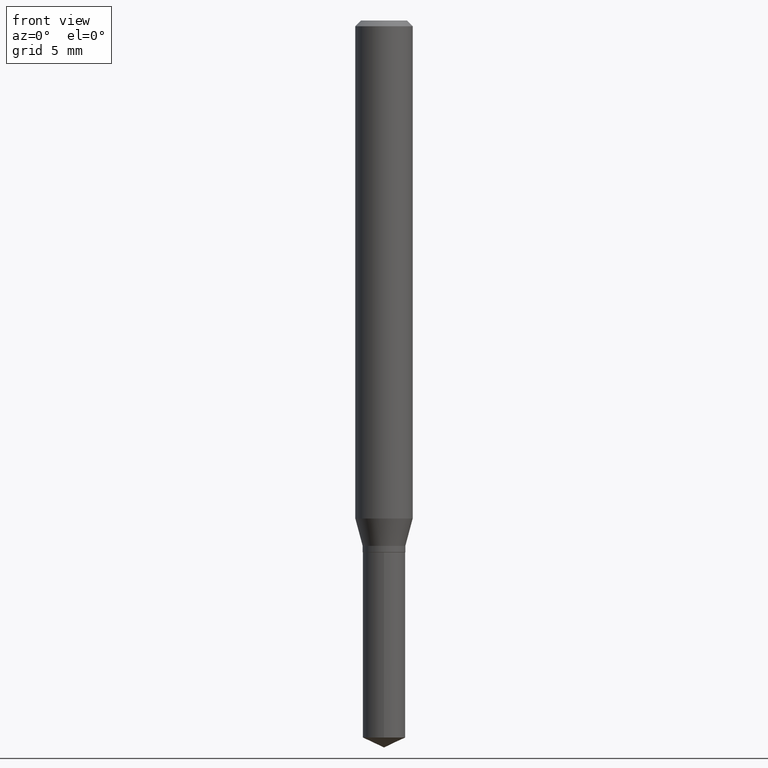
[diagram: clean part render]
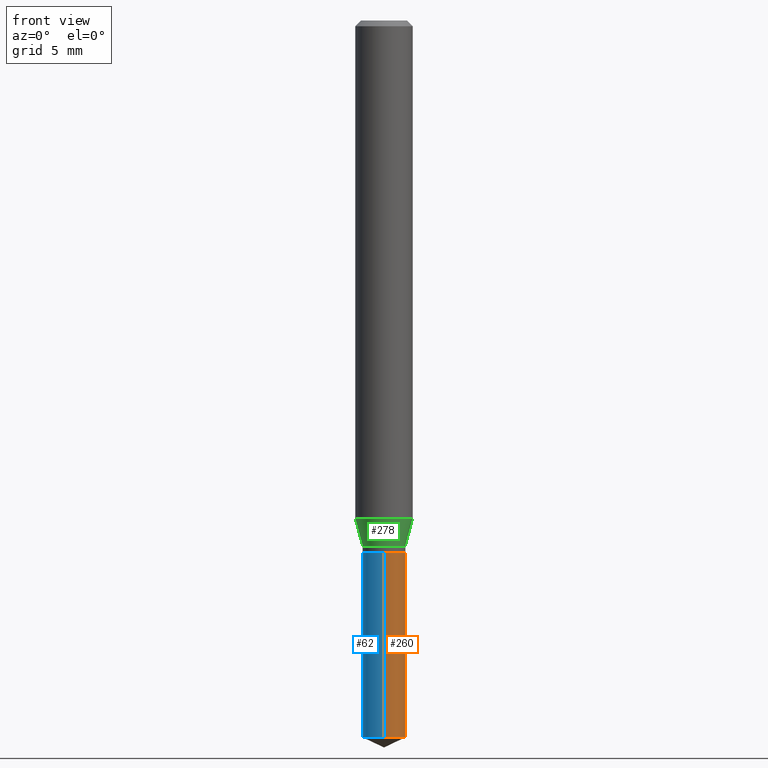
[diagram: same view with three faces highlighted in distinct colors, each labeled with its STEP entity id]
A machine part, front view with three faces highlighted in distinct colors.
Their STEP definitions:

[orange] entity #260 — the highlighted cylindrical surface (edge-blend (fillet) strip) has radius 1.1151 mm, axis along (-0, 0, 1).
#4 = VERTEX_POINT ( 'NONE', #436 ) ;
#9 = DIRECTION ( 'NONE',  ( -6.982962677686265922E-15, -1.000000000000000000, 3.111444184127862170E-15 ) ) ;
#20 = DIRECTION ( 'NONE',  ( -2.445458899330790108E-29, 3.491495526022433205E-15, 1.000000000000000000 ) ) ;
#40 = CARTESIAN_POINT ( 'NONE',  ( 3.119282609987106658E-16, 0.04389999999999617819, -1.094500000000000028 ) ) ;
#77 = VECTOR ( 'NONE', #310, 39.37007874015748143 ) ;
#88 = CARTESIAN_POINT ( 'NONE',  ( 2.676565608369631794E-29, -3.821426325363822773E-15, -1.094499999999999806 ) ) ;
#101 = ORIENTED_EDGE ( 'NONE', *, *, #441, .T. ) ;
#137 = CARTESIAN_POINT ( 'NONE',  ( -3.065520615504003481E-16, -0.04390000000000382485, -1.094499999999999806 ) ) ;
#157 = LINE ( 'NONE', #40, #77 ) ;
#177 = AXIS2_PLACEMENT_3D ( 'NONE', #88, #425, #9 ) ;
#179 = EDGE_CURVE ( 'NONE', #4, #355, #465, .T. ) ;
#205 = CIRCLE ( 'NONE', #233, 0.04390000000000000152 ) ;
#233 = AXIS2_PLACEMENT_3D ( 'NONE', #466, #237, #272 ) ;
#237 = DIRECTION ( 'NONE',  ( -2.445458899330790108E-29, 3.491495526022433205E-15, 1.000000000000000000 ) ) ;
#240 = ORIENTED_EDGE ( 'NONE', *, *, #455, .T. ) ;
#260 = ADVANCED_FACE ( 'NONE', ( #393 ), #273, .T. ) ;
#265 = CARTESIAN_POINT ( 'NONE',  ( -3.065520615503908817E-16, -0.04390000000000513630, -1.475629093806995584 ) ) ;
#272 = DIRECTION ( 'NONE',  ( -6.982962677686265922E-15, -1.000000000000000000, 6.222888368255724339E-15 ) ) ;
#273 = CYLINDRICAL_SURFACE ( 'NONE', #177, 0.04390000000000000152 ) ;
#285 = EDGE_CURVE ( 'NONE', #367, #4, #323, .T. ) ;
#307 = ORIENTED_EDGE ( 'NONE', *, *, #179, .F. ) ;
#310 = DIRECTION ( 'NONE',  ( -2.445458899330790108E-29, 3.491495526022433599E-15, 1.000000000000000000 ) ) ;
#323 = LINE ( 'NONE', #137, #379 ) ;
#351 = CARTESIAN_POINT ( 'NONE',  ( 3.119282609987198856E-16, 0.04389999999999482511, -1.475629093806996028 ) ) ;
#355 = VERTEX_POINT ( 'NONE', #420 ) ;
#367 = VERTEX_POINT ( 'NONE', #265 ) ;
#379 = VECTOR ( 'NONE', #438, 39.37007874015748143 ) ;
#393 = FACE_OUTER_BOUND ( 'NONE', #430, .T. ) ;
#420 = CARTESIAN_POINT ( 'NONE',  ( 3.119282609987200828E-16, 0.04389999999999617819, -1.094500000000000028 ) ) ;
#425 = DIRECTION ( 'NONE',  ( -2.445458899330790108E-29, 3.491495526022433205E-15, 1.000000000000000000 ) ) ;
#430 = EDGE_LOOP ( 'NONE', ( #101, #240, #307, #439 ) ) ;
#436 = CARTESIAN_POINT ( 'NONE',  ( -3.065520615504003481E-16, -0.04390000000000382485, -1.094499999999999806 ) ) ;
#438 = DIRECTION ( 'NONE',  ( -2.445458899330790108E-29, 3.491495526022433599E-15, 1.000000000000000000 ) ) ;
#439 = ORIENTED_EDGE ( 'NONE', *, *, #285, .F. ) ;
#441 = EDGE_CURVE ( 'NONE', #367, #458, #205, .T. ) ;
#442 = CARTESIAN_POINT ( 'NONE',  ( 2.676565608369631794E-29, -3.821426325363822773E-15, -1.094499999999999806 ) ) ;
#445 = AXIS2_PLACEMENT_3D ( 'NONE', #442, #20, #481 ) ;
#455 = EDGE_CURVE ( 'NONE', #458, #355, #157, .T. ) ;
#458 = VERTEX_POINT ( 'NONE', #351 ) ;
#465 = CIRCLE ( 'NONE', #445, 0.04390000000000000152 ) ;
#466 = CARTESIAN_POINT ( 'NONE',  ( 3.608601142613829336E-29, -5.152136851227932121E-15, -1.475629093806995806 ) ) ;
#481 = DIRECTION ( 'NONE',  ( -6.982962677686265922E-15, -1.000000000000000000, 3.111444184127862170E-15 ) ) ;

[blue] entity #62 — the highlighted cylindrical surface (edge-blend (fillet) strip) has radius 1.1151 mm, axis along (-0, 0, 1).
#4 = VERTEX_POINT ( 'NONE', #436 ) ;
#33 = ORIENTED_EDGE ( 'NONE', *, *, #455, .F. ) ;
#40 = CARTESIAN_POINT ( 'NONE',  ( 3.119282609987106658E-16, 0.04389999999999617819, -1.094500000000000028 ) ) ;
#62 = ADVANCED_FACE ( 'NONE', ( #124 ), #319, .T. ) ;
#77 = VECTOR ( 'NONE', #310, 39.37007874015748143 ) ;
#81 = DIRECTION ( 'NONE',  ( -6.982962677686265922E-15, -1.000000000000000000, 3.111444184127862170E-15 ) ) ;
#124 = FACE_OUTER_BOUND ( 'NONE', #201, .T. ) ;
#137 = CARTESIAN_POINT ( 'NONE',  ( -3.065520615504003481E-16, -0.04390000000000382485, -1.094499999999999806 ) ) ;
#144 = CIRCLE ( 'NONE', #204, 0.04390000000000000152 ) ;
#157 = LINE ( 'NONE', #40, #77 ) ;
#166 = DIRECTION ( 'NONE',  ( -6.982962677686265922E-15, -1.000000000000000000, 6.222888368255724339E-15 ) ) ;
#167 = CARTESIAN_POINT ( 'NONE',  ( 2.676565608369631794E-29, -3.821426325363822773E-15, -1.094499999999999806 ) ) ;
#201 = EDGE_LOOP ( 'NONE', ( #33, #424, #236, #370 ) ) ;
#204 = AXIS2_PLACEMENT_3D ( 'NONE', #247, #293, #166 ) ;
#219 = AXIS2_PLACEMENT_3D ( 'NONE', #238, #284, #81 ) ;
#236 = ORIENTED_EDGE ( 'NONE', *, *, #285, .T. ) ;
#238 = CARTESIAN_POINT ( 'NONE',  ( 2.676565608369631794E-29, -3.821426325363822773E-15, -1.094499999999999806 ) ) ;
#247 = CARTESIAN_POINT ( 'NONE',  ( 3.608601142613829336E-29, -5.152136851227932121E-15, -1.475629093806995806 ) ) ;
#257 = CIRCLE ( 'NONE', #219, 0.04390000000000000152 ) ;
#265 = CARTESIAN_POINT ( 'NONE',  ( -3.065520615503908817E-16, -0.04390000000000513630, -1.475629093806995584 ) ) ;
#266 = EDGE_CURVE ( 'NONE', #355, #4, #257, .T. ) ;
#284 = DIRECTION ( 'NONE',  ( -2.445458899330790108E-29, 3.491495526022433205E-15, 1.000000000000000000 ) ) ;
#285 = EDGE_CURVE ( 'NONE', #367, #4, #323, .T. ) ;
#287 = DIRECTION ( 'NONE',  ( -6.982962677686265922E-15, -1.000000000000000000, 3.111444184127862170E-15 ) ) ;
#293 = DIRECTION ( 'NONE',  ( -2.445458899330790108E-29, 3.491495526022433205E-15, 1.000000000000000000 ) ) ;
#299 = EDGE_CURVE ( 'NONE', #458, #367, #144, .T. ) ;
#310 = DIRECTION ( 'NONE',  ( -2.445458899330790108E-29, 3.491495526022433599E-15, 1.000000000000000000 ) ) ;
#319 = CYLINDRICAL_SURFACE ( 'NONE', #428, 0.04390000000000000152 ) ;
#323 = LINE ( 'NONE', #137, #379 ) ;
#351 = CARTESIAN_POINT ( 'NONE',  ( 3.119282609987198856E-16, 0.04389999999999482511, -1.475629093806996028 ) ) ;
#355 = VERTEX_POINT ( 'NONE', #420 ) ;
#367 = VERTEX_POINT ( 'NONE', #265 ) ;
#370 = ORIENTED_EDGE ( 'NONE', *, *, #266, .F. ) ;
#379 = VECTOR ( 'NONE', #438, 39.37007874015748143 ) ;
#401 = DIRECTION ( 'NONE',  ( -2.445458899330790108E-29, 3.491495526022433205E-15, 1.000000000000000000 ) ) ;
#420 = CARTESIAN_POINT ( 'NONE',  ( 3.119282609987200828E-16, 0.04389999999999617819, -1.094500000000000028 ) ) ;
#424 = ORIENTED_EDGE ( 'NONE', *, *, #299, .T. ) ;
#428 = AXIS2_PLACEMENT_3D ( 'NONE', #167, #401, #287 ) ;
#436 = CARTESIAN_POINT ( 'NONE',  ( -3.065520615504003481E-16, -0.04390000000000382485, -1.094499999999999806 ) ) ;
#438 = DIRECTION ( 'NONE',  ( -2.445458899330790108E-29, 3.491495526022433599E-15, 1.000000000000000000 ) ) ;
#455 = EDGE_CURVE ( 'NONE', #458, #355, #157, .T. ) ;
#458 = VERTEX_POINT ( 'NONE', #351 ) ;

[green] entity #278 — the highlighted conical surface has half-angle 15 deg.
#15 = EDGE_CURVE ( 'NONE', #110, #334, #453, .T. ) ;
#16 = CARTESIAN_POINT ( 'NONE',  ( 2.506017220557920356E-29, -3.577928427574937870E-15, -1.024759430265331339 ) ) ;
#21 = AXIS2_PLACEMENT_3D ( 'NONE', #248, #402, #296 ) ;
#44 = VECTOR ( 'NONE', #369, 39.37007874015748143 ) ;
#46 = EDGE_LOOP ( 'NONE', ( #86, #286, #94, #361 ) ) ;
#51 = AXIS2_PLACEMENT_3D ( 'NONE', #118, #400, #245 ) ;
#56 = CARTESIAN_POINT ( 'NONE',  ( 0.04390000000000000152, -4.081890833241520572E-15, -1.081299999999999928 ) ) ;
#58 = CARTESIAN_POINT ( 'NONE',  ( 0.04390000000000000152, -4.081890833241520572E-15, -1.081299999999999928 ) ) ;
#86 = ORIENTED_EDGE ( 'NONE', *, *, #92, .F. ) ;
#92 = EDGE_CURVE ( 'NONE', #234, #110, #148, .T. ) ;
#94 = ORIENTED_EDGE ( 'NONE', *, *, #202, .T. ) ;
#99 = VECTOR ( 'NONE', #289, 39.37007874015748143 ) ;
#110 = VERTEX_POINT ( 'NONE', #217 ) ;
#118 = CARTESIAN_POINT ( 'NONE',  ( 2.644285420127988674E-29, -3.775338771691093501E-15, -1.081299999999999928 ) ) ;
#128 = CIRCLE ( 'NONE', #21, 0.04390000000000000152 ) ;
#135 = CONICAL_SURFACE ( 'NONE', #51, 0.04390000000000000152, 0.2617993877991502960 ) ;
#148 = LINE ( 'NONE', #329, #44 ) ;
#202 = EDGE_CURVE ( 'NONE', #309, #334, #330, .T. ) ;
#208 = EDGE_CURVE ( 'NONE', #234, #309, #128, .T. ) ;
#217 = CARTESIAN_POINT ( 'NONE',  ( -0.05905000000000013016, -3.158352942108598377E-15, -1.024759430265331339 ) ) ;
#234 = VERTEX_POINT ( 'NONE', #308 ) ;
#245 = DIRECTION ( 'NONE',  ( 1.000000000000000000, -6.982962677686261977E-15, 0.000000000000000000 ) ) ;
#248 = CARTESIAN_POINT ( 'NONE',  ( 2.644285420127988674E-29, -3.775338771691093501E-15, -1.081299999999999928 ) ) ;
#278 = ADVANCED_FACE ( 'NONE', ( #387 ), #135, .T. ) ;
#286 = ORIENTED_EDGE ( 'NONE', *, *, #208, .T. ) ;
#289 = DIRECTION ( 'NONE',  ( 0.2588190451025215721, 1.565188264969619995E-15, 0.9659258262890679791 ) ) ;
#296 = DIRECTION ( 'NONE',  ( 1.000000000000000000, -6.982962677686261977E-15, 0.000000000000000000 ) ) ;
#308 = CARTESIAN_POINT ( 'NONE',  ( -0.04390000000000000152, -3.485581417194063442E-15, -1.081299999999999928 ) ) ;
#309 = VERTEX_POINT ( 'NONE', #56 ) ;
#325 = DIRECTION ( 'NONE',  ( -2.445468806185136597E-29, 3.491481338843145583E-15, 1.000000000000000000 ) ) ;
#329 = CARTESIAN_POINT ( 'NONE',  ( -0.04390000000000000152, -3.463410510692409953E-15, -1.081299999999999928 ) ) ;
#330 = LINE ( 'NONE', #58, #99 ) ;
#334 = VERTEX_POINT ( 'NONE', #344 ) ;
#344 = CARTESIAN_POINT ( 'NONE',  ( 0.05905000000000013016, -3.990272373692312791E-15, -1.024759430265331339 ) ) ;
#361 = ORIENTED_EDGE ( 'NONE', *, *, #15, .F. ) ;
#369 = DIRECTION ( 'NONE',  ( -0.2588190451025215721, 5.211531920934551831E-15, 0.9659258262890679791 ) ) ;
#387 = FACE_OUTER_BOUND ( 'NONE', #46, .T. ) ;
#400 = DIRECTION ( 'NONE',  ( -2.445468806185136597E-29, 3.491481338843145583E-15, 1.000000000000000000 ) ) ;
#402 = DIRECTION ( 'NONE',  ( -2.445468806185136597E-29, 3.491481338843145583E-15, 1.000000000000000000 ) ) ;
#444 = AXIS2_PLACEMENT_3D ( 'NONE', #16, #325, #477 ) ;
#453 = CIRCLE ( 'NONE', #444, 0.05905000000000013016 ) ;
#477 = DIRECTION ( 'NONE',  ( 1.000000000000000000, -6.982962677686265133E-15, 0.000000000000000000 ) ) ;